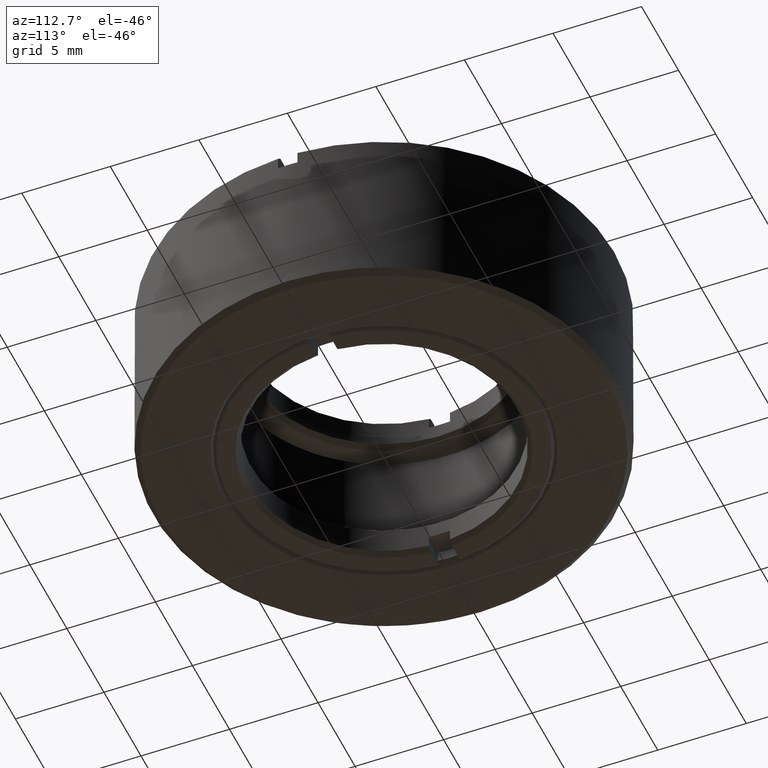
[diagram: clean part render]
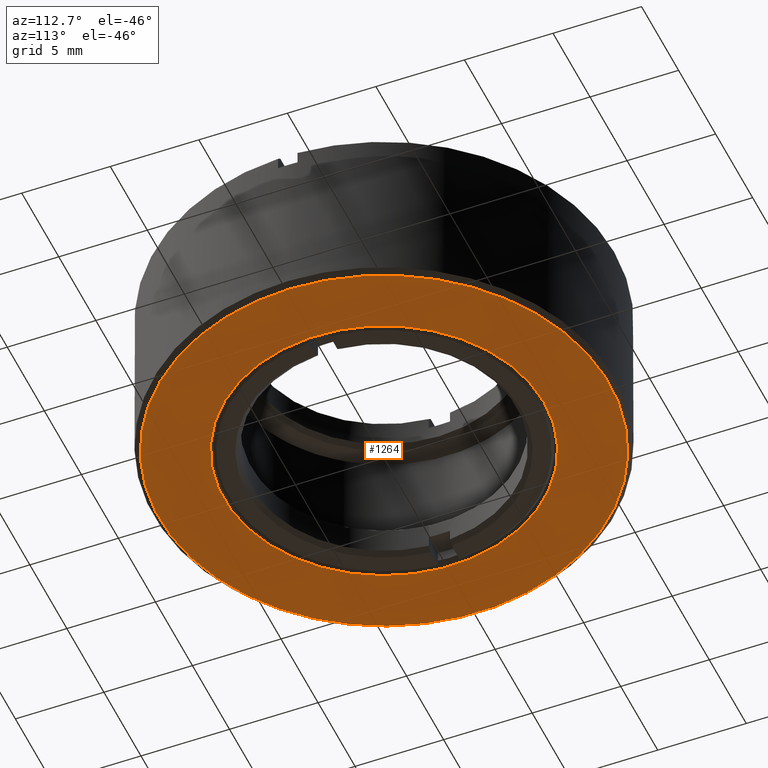
[diagram: same view with one face highlighted and labeled with its STEP entity id]
A machine part, auxiliary view. The second image highlights one B-rep face of the part: STEP entity #1264.
In plain terms, the highlighted planar face has unit normal (0, 0, 1).
Its self-contained STEP definition (entity closure, byte-faithful):
#117 = VERTEX_POINT ( 'NONE', #1487 ) ;
#194 = EDGE_LOOP ( 'NONE', ( #1153 ) ) ;
#228 = EDGE_CURVE ( 'NONE', #362, #362, #1133, .T. ) ;
#291 = DIRECTION ( 'NONE',  ( 0.000000000000000000, 1.000000000000000000, 9.584107602081800859E-17 ) ) ;
#302 = AXIS2_PLACEMENT_3D ( 'NONE', #1376, #411, #291 ) ;
#361 = DIRECTION ( 'NONE',  ( 0.000000000000000000, -0.000000000000000000, 1.000000000000000000 ) ) ;
#362 = VERTEX_POINT ( 'NONE', #1337 ) ;
#411 = DIRECTION ( 'NONE',  ( 0.000000000000000000, 4.792053801040901662E-17, -1.000000000000000000 ) ) ;
#748 = DIRECTION ( 'NONE',  ( 0.000000000000000000, 0.000000000000000000, 1.000000000000000000 ) ) ;
#865 = FACE_BOUND ( 'NONE', #1521, .T. ) ;
#886 = EDGE_CURVE ( 'NONE', #117, #117, #1265, .T. ) ;
#1054 = AXIS2_PLACEMENT_3D ( 'NONE', #1080, #361, #1492 ) ;
#1080 = CARTESIAN_POINT ( 'NONE',  ( 0.000000000000000000, 0.000000000000000000, -5.000000000000000888 ) ) ;
#1133 = CIRCLE ( 'NONE', #1054, 12.69999999999999929 ) ;
#1153 = ORIENTED_EDGE ( 'NONE', *, *, #228, .F. ) ;
#1215 = AXIS2_PLACEMENT_3D ( 'NONE', #1364, #748, #1246 ) ;
#1220 = PLANE ( 'NONE',  #1215 ) ;
#1246 = DIRECTION ( 'NONE',  ( 1.000000000000000000, 0.000000000000000000, -0.000000000000000000 ) ) ;
#1264 = ADVANCED_FACE ( 'NONE', ( #1489, #865 ), #1220, .F. ) ;
#1265 = CIRCLE ( 'NONE', #302, 9.050000000000006040 ) ;
#1337 = CARTESIAN_POINT ( 'NONE',  ( 12.69999999999999929, 0.000000000000000000, -5.000000000000000888 ) ) ;
#1364 = CARTESIAN_POINT ( 'NONE',  ( 0.000000000000000000, 0.000000000000000000, -5.000000000000000000 ) ) ;
#1376 = CARTESIAN_POINT ( 'NONE',  ( 0.000000000000000000, 0.000000000000000000, -5.000000000000000000 ) ) ;
#1487 = CARTESIAN_POINT ( 'NONE',  ( 0.000000000000000000, 9.050000000000006040, -4.999999999999999112 ) ) ;
#1488 = ORIENTED_EDGE ( 'NONE', *, *, #886, .F. ) ;
#1489 = FACE_OUTER_BOUND ( 'NONE', #194, .T. ) ;
#1492 = DIRECTION ( 'NONE',  ( 1.000000000000000000, 0.000000000000000000, 0.000000000000000000 ) ) ;
#1521 = EDGE_LOOP ( 'NONE', ( #1488 ) ) ;